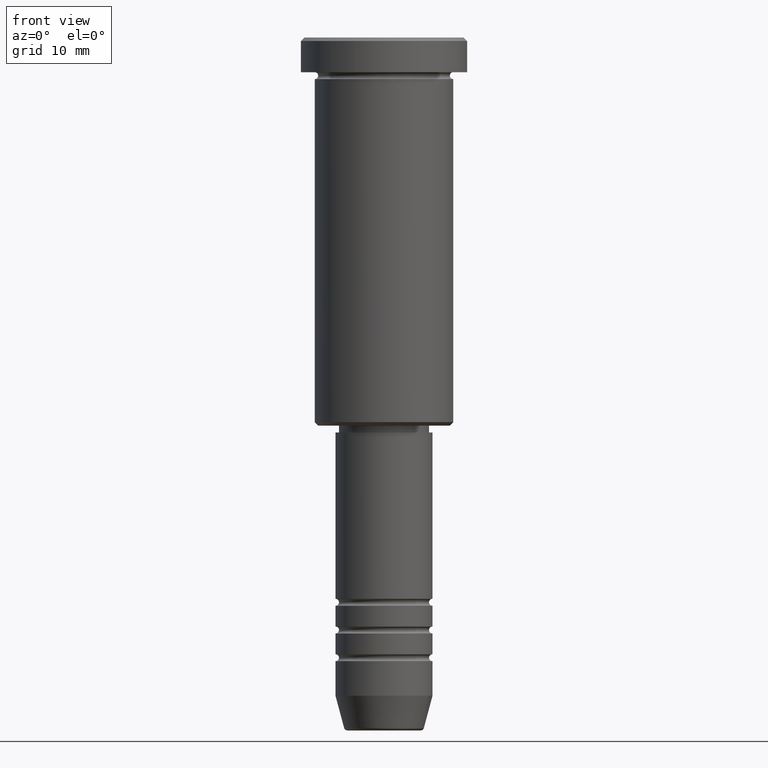
[diagram: clean part render]
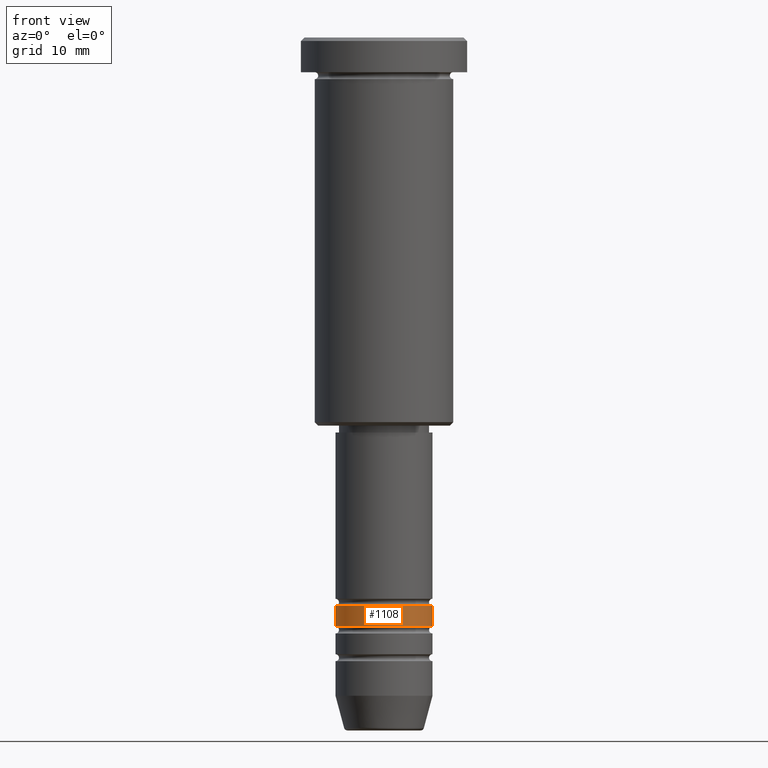
[diagram: same view with one face highlighted and labeled with its STEP entity id]
A machine part, front view. The second image highlights one B-rep face of the part: STEP entity #1108.
In plain terms, the highlighted cylindrical surface (partial cylindrical patch) has radius 7 mm, axis along (-0, -0, 1).
Its self-contained STEP definition (entity closure, byte-faithful):
#7 = ORIENTED_EDGE ( 'NONE', *, *, #171, .F. ) ;
#34 = DIRECTION ( 'NONE',  ( -0.000000000000000000, -0.000000000000000000, 1.000000000000000000 ) ) ;
#128 = VECTOR ( 'NONE', #34, 1000.000000000000000 ) ;
#130 = CARTESIAN_POINT ( 'NONE',  ( -7.000000000000002665, 8.572527594031475162E-16, -84.99999999999998579 ) ) ;
#145 = VECTOR ( 'NONE', #969, 1000.000000000000000 ) ;
#171 = EDGE_CURVE ( 'NONE', #1170, #435, #240, .T. ) ;
#222 = CIRCLE ( 'NONE', #778, 7.000000000000000000 ) ;
#223 = ORIENTED_EDGE ( 'NONE', *, *, #821, .F. ) ;
#240 = LINE ( 'NONE', #974, #145 ) ;
#286 = CARTESIAN_POINT ( 'NONE',  ( 0.000000000000000000, 0.000000000000000000, -81.99999999999998579 ) ) ;
#301 = CIRCLE ( 'NONE', #446, 7.000000000000002665 ) ;
#337 = ORIENTED_EDGE ( 'NONE', *, *, #732, .T. ) ;
#341 = EDGE_LOOP ( 'NONE', ( #7, #337, #1133, #223 ) ) ;
#435 = VERTEX_POINT ( 'NONE', #1123 ) ;
#446 = AXIS2_PLACEMENT_3D ( 'NONE', #842, #742, #1129 ) ;
#486 = CARTESIAN_POINT ( 'NONE',  ( 7.000000000000000888, 0.000000000000000000, 0.000000000000000000 ) ) ;
#519 = FACE_OUTER_BOUND ( 'NONE', #341, .T. ) ;
#549 = DIRECTION ( 'NONE',  ( -0.000000000000000000, -0.000000000000000000, 1.000000000000000000 ) ) ;
#609 = VERTEX_POINT ( 'NONE', #1006 ) ;
#648 = LINE ( 'NONE', #486, #128 ) ;
#703 = DIRECTION ( 'NONE',  ( 1.000000000000000000, 0.000000000000000000, 0.000000000000000000 ) ) ;
#726 = CARTESIAN_POINT ( 'NONE',  ( 0.000000000000000000, 0.000000000000000000, 0.000000000000000000 ) ) ;
#732 = EDGE_CURVE ( 'NONE', #1170, #792, #301, .T. ) ;
#742 = DIRECTION ( 'NONE',  ( -0.000000000000000000, -0.000000000000000000, 1.000000000000000000 ) ) ;
#759 = EDGE_CURVE ( 'NONE', #792, #609, #648, .T. ) ;
#763 = DIRECTION ( 'NONE',  ( -0.000000000000000000, -0.000000000000000000, 1.000000000000000000 ) ) ;
#778 = AXIS2_PLACEMENT_3D ( 'NONE', #286, #763, #939 ) ;
#792 = VERTEX_POINT ( 'NONE', #838 ) ;
#821 = EDGE_CURVE ( 'NONE', #435, #609, #222, .T. ) ;
#838 = CARTESIAN_POINT ( 'NONE',  ( 7.000000000000002665, 0.000000000000000000, -84.99999999999998579 ) ) ;
#842 = CARTESIAN_POINT ( 'NONE',  ( 0.000000000000000000, 0.000000000000000000, -84.99999999999998579 ) ) ;
#939 = DIRECTION ( 'NONE',  ( 1.000000000000000000, 0.000000000000000000, 0.000000000000000000 ) ) ;
#969 = DIRECTION ( 'NONE',  ( -0.000000000000000000, -0.000000000000000000, 1.000000000000000000 ) ) ;
#974 = CARTESIAN_POINT ( 'NONE',  ( -7.000000000000000888, 8.572527594031474176E-16, 0.000000000000000000 ) ) ;
#1006 = CARTESIAN_POINT ( 'NONE',  ( 7.000000000000000000, 0.000000000000000000, -81.99999999999998579 ) ) ;
#1108 = ADVANCED_FACE ( 'NONE', ( #519 ), #1132, .T. ) ;
#1123 = CARTESIAN_POINT ( 'NONE',  ( -7.000000000000000000, 8.572527594031473190E-16, -81.99999999999998579 ) ) ;
#1129 = DIRECTION ( 'NONE',  ( 1.000000000000000000, 0.000000000000000000, 0.000000000000000000 ) ) ;
#1132 = CYLINDRICAL_SURFACE ( 'NONE', #1142, 7.000000000000000888 ) ;
#1133 = ORIENTED_EDGE ( 'NONE', *, *, #759, .T. ) ;
#1142 = AXIS2_PLACEMENT_3D ( 'NONE', #726, #549, #703 ) ;
#1170 = VERTEX_POINT ( 'NONE', #130 ) ;